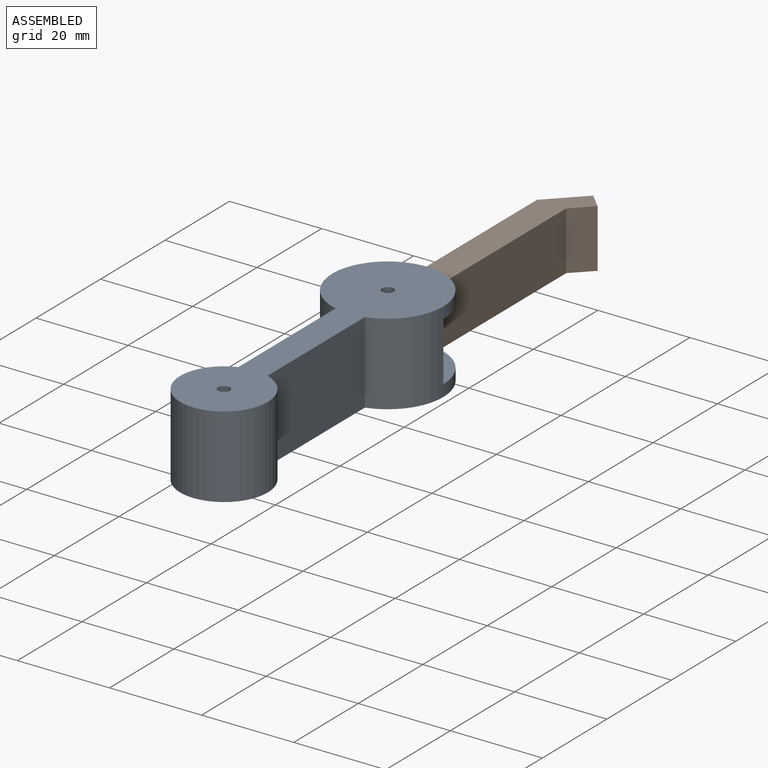
[diagram: assembled view]
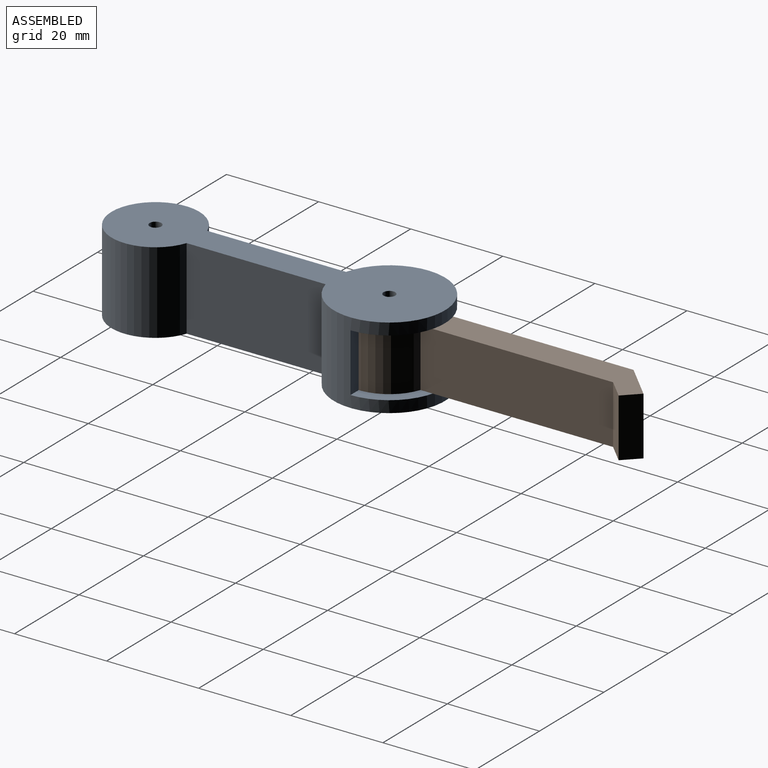
[diagram: assembled view, second angle]
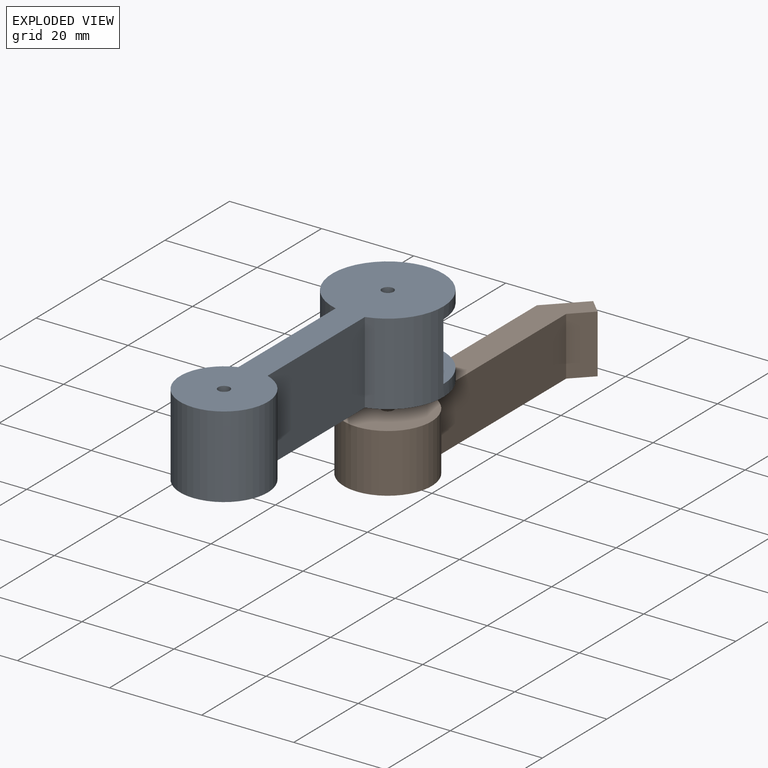
[diagram: exploded view]
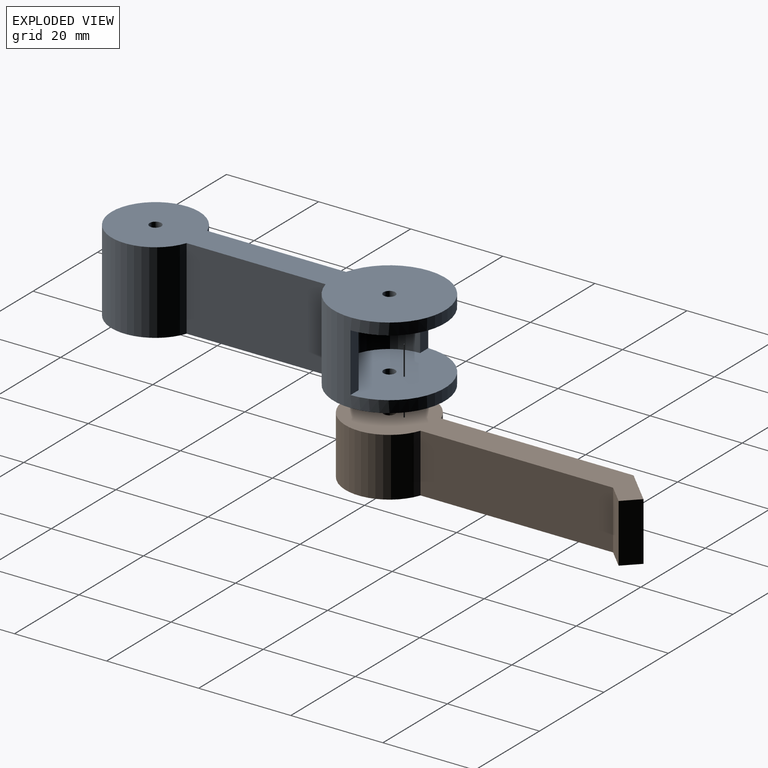
[diagram: exploded view, second angle]
ASSEMBLY  parts=2 mates=2
PART A: 14 faces, bbox 24.1x72.4x17.8 mm
  f0: cylinder r=1.27mm len=2.54mm, axis (0,0,-1), area 20.3mm2, adj f10,f11
  f1: plane 12.7x2.54mm, normal (0,1,0), area 32.3mm2, adj f3,f11,f12,f13
  f2: plane 12.7x2.54mm, normal (0,1,0), area 32.3mm2, adj f3,f11,f12,f13
  f3: cylinder r=12.06mm len=24.13mm, axis (0,0,-1), area 752.2mm2, adj f1,f2,f4,f6,f9,f10,f11,f12
  f4: plane 30.18x17.78mm, normal (-1,0,0), area 536.6mm2, adj f3,f5,f9,f10
  f5: cylinder r=9.53mm len=19.05mm, axis (0,0,-1), area 949mm2, adj f4,f6,f9,f10
  f6: plane 30.18x17.78mm, normal (1,0,0), area 536.6mm2, adj f3,f5,f9,f10
  f7: cylinder r=1.27mm len=2.54mm, axis (0,0,-1), area 20.3mm2, adj f9,f12
  f8: cylinder r=1.27mm len=17.78mm, axis (0,0,-1), area 141.9mm2, adj f9,f10
  f9: plane 72.39x24.13mm, normal (0,0,1), area 919.7mm2, adj f3,f4,f5,f6,f7,f8
  f10: plane 72.39x24.13mm, normal (0,0,-1), area 919.7mm2, adj f0,f3,f4,f5,f6,f8
  f11: plane 24.13x21.59mm, normal (0,0,1), area 366.1mm2, adj f0,f1,f2,f3,f13
  f12: plane 24.13x21.59mm, normal (0,0,-1), area 366.1mm2, adj f1,f2,f3,f7,f13
  f13: cylinder r=9.53mm len=19.05mm, axis (0,0,-1), area 380mm2, adj f1,f2,f11,f12
PART B: 9 faces, bbox 19.1x67.5x12.7 mm
  f0: plane 12.7x7.18mm, normal (-0.71,0.71,0), area 129mm2, adj f1,f5,f7,f8
  f1: plane 41.82x12.7mm, normal (-1,0,0), area 531.1mm2, adj f0,f2,f7,f8
  f2: cylinder r=9.53mm len=19.05mm, axis (0,0,-1), area 677.8mm2, adj f1,f3,f7,f8
  f3: plane 41.82x12.7mm, normal (1,0,0), area 531.1mm2, adj f2,f4,f7,f8
  f4: plane 12.7x4.01mm, normal (0.71,-0.71,0), area 72mm2, adj f3,f5,f7,f8
  f5: plane 12.7x3.18mm, normal (0.71,0.71,0), area 57mm2, adj f0,f4,f7,f8
  f6: cylinder r=1.27mm len=12.7mm, axis (0,0,-1), area 101.3mm2, adj f7,f8
  f7: plane 67.51x19.05mm, normal (0,0,1), area 578.7mm2, adj f0,f1,f2,f3,f4,f5,f6
  f8: plane 67.51x19.05mm, normal (0,0,-1), area 578.7mm2, adj f0,f1,f2,f3,f4,f5,f6
PLACE A t=(-8.98,-26.28,23.29)mm
PLACE B t=(-8.98,-0.88,25.83)mm
MATE planar B.f7 <-> A.f12  axis (0,0,1) through (-5.8,8.1,38.53)mm
MATE revolute B.f6 <-> A.f0  axis (0,0,1) through (-8.98,-0.88,38.53)mm
